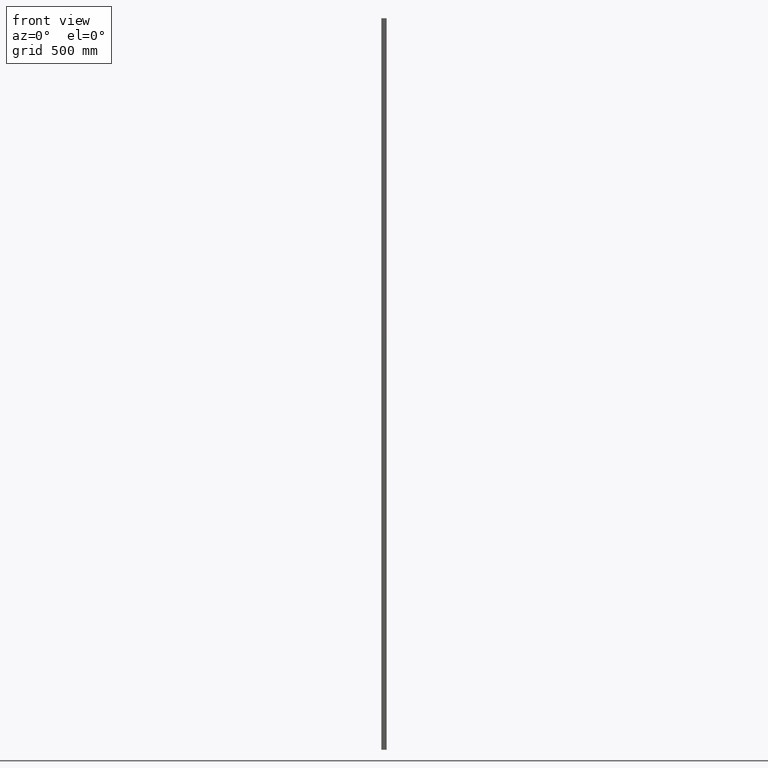
[diagram: clean part render]
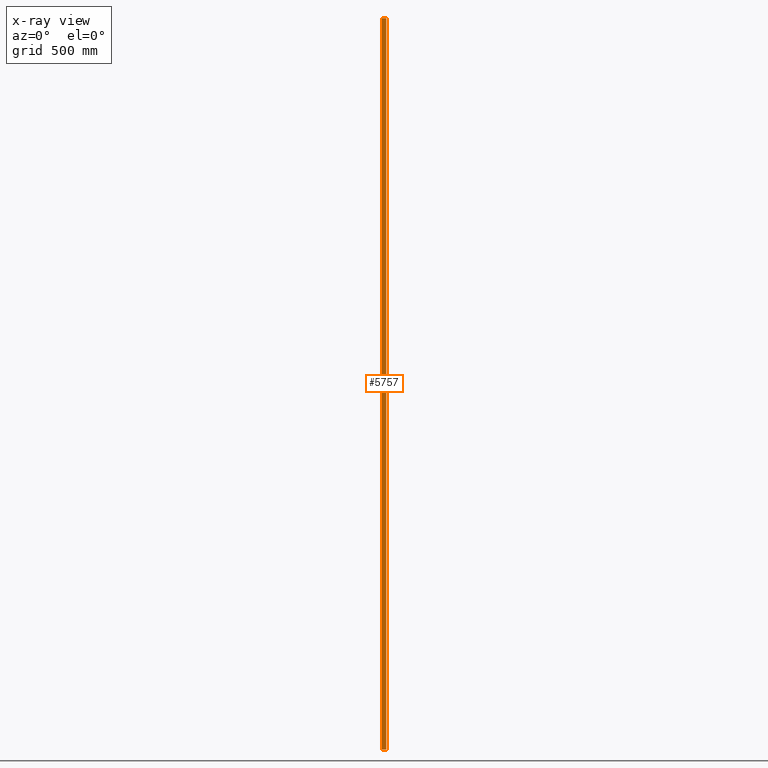
[diagram: x-ray — body ghosted, one internal face saturated and labeled with its STEP entity id]
A machine part, front view, then the same camera in x-ray: the body is ghosted and one INTERNAL B-rep face — a face not visible from any outside direction — is saturated and labeled: STEP entity #5757.
In plain terms, the highlighted planar face has unit normal (0, 1, 0).
Its self-contained STEP definition (entity closure, byte-faithful):
#3 = LINE ( 'NONE', #15157, #4398 ) ;
#6 = ORIENTED_EDGE ( 'NONE', *, *, #15926, .T. ) ;
#20 = ORIENTED_EDGE ( 'NONE', *, *, #7199, .T. ) ;
#31 = CARTESIAN_POINT ( 'NONE',  ( -9.000000000000001800, 10.00000000000000000, -1500.000000000000000 ) ) ;
#51 = CARTESIAN_POINT ( 'NONE',  ( -8.999999999999998200, 10.00000000280208000, 2.314505509497168000 ) ) ;
#69 = EDGE_CURVE ( 'NONE', #5281, #4509, #1039, .T. ) ;
#79 = VECTOR ( 'NONE', #15009, 1000.000000000000000 ) ;
#81 = VERTEX_POINT ( 'NONE', #1975 ) ;
#93 = VERTEX_POINT ( 'NONE', #734 ) ;
#103 = DIRECTION ( 'NONE',  ( -0.0000000000000000000, -0.0000000000000000000, -1.000000000000000000 ) ) ;
#125 = LINE ( 'NONE', #9187, #9929 ) ;
#156 = ORIENTED_EDGE ( 'NONE', *, *, #6298, .T. ) ;
#201 = LINE ( 'NONE', #5926, #7226 ) ;
#217 = VERTEX_POINT ( 'NONE', #6093 ) ;
#262 = CARTESIAN_POINT ( 'NONE',  ( -9.000000000000001800, 10.00000000000000000, 0.7927559264528927200 ) ) ;
#287 = DIRECTION ( 'NONE',  ( -0.0000000000000000000, -0.0000000000000000000, -1.000000000000000000 ) ) ;
#303 = LINE ( 'NONE', #15085, #13450 ) ;
#310 = VERTEX_POINT ( 'NONE', #9094 ) ;
#335 = VECTOR ( 'NONE', #13925, 1000.000000000000000 ) ;
#353 = CARTESIAN_POINT ( 'NONE',  ( -9.000000000000001800, 10.00000000000000000, 1500.000000000000000 ) ) ;
#369 = CARTESIAN_POINT ( 'NONE',  ( -9.000000000000001800, 10.00000000000000000, 5.670638757203638700 ) ) ;
#390 = ORIENTED_EDGE ( 'NONE', *, *, #5374, .T. ) ;
#397 = CARTESIAN_POINT ( 'NONE',  ( -9.000000000000001800, 10.00000000000000000, 1500.000000000000000 ) ) ;
#431 = CARTESIAN_POINT ( 'NONE',  ( -9.000000000000001800, 10.00000000000000000, 1500.000000000000000 ) ) ;
#446 = VERTEX_POINT ( 'NONE', #262 ) ;
#453 = DIRECTION ( 'NONE',  ( -0.0000000000000000000, -0.0000000000000000000, -1.000000000000000000 ) ) ;
#476 = VERTEX_POINT ( 'NONE', #2797 ) ;
#493 = LINE ( 'NONE', #1965, #4709 ) ;
#540 = CARTESIAN_POINT ( 'NONE',  ( -8.999999999999998200, 9.999999990799702600, 8.301990388454326500 ) ) ;
#548 = VERTEX_POINT ( 'NONE', #369 ) ;
#550 = VECTOR ( 'NONE', #572, 1000.000000000000000 ) ;
#565 = DIRECTION ( 'NONE',  ( -0.0000000000000000000, -0.0000000000000000000, -1.000000000000000000 ) ) ;
#572 = DIRECTION ( 'NONE',  ( -0.0000000000000000000, -0.0000000000000000000, -1.000000000000000000 ) ) ;
#578 = ORIENTED_EDGE ( 'NONE', *, *, #13438, .T. ) ;
#587 = DIRECTION ( 'NONE',  ( -0.0000000000000000000, -0.0000000000000000000, -1.000000000000000000 ) ) ;
#646 = CARTESIAN_POINT ( 'NONE',  ( -9.000000000000001800, 10.00000000000000000, 1500.000000000000000 ) ) ;
#734 = CARTESIAN_POINT ( 'NONE',  ( -9.000000000000000000, 9.999999999999998200, -9.444227430555953300 ) ) ;
#738 = DIRECTION ( 'NONE',  ( -0.0000000000000000000, -0.0000000000000000000, -1.000000000000000000 ) ) ;
#869 = EDGE_CURVE ( 'NONE', #5873, #548, #15750, .T. ) ;
#908 = DIRECTION ( 'NONE',  ( -0.0000000000000000000, -0.0000000000000000000, -1.000000000000000000 ) ) ;
#922 = EDGE_CURVE ( 'NONE', #14538, #4088, #3999, .T. ) ;
#939 = VECTOR ( 'NONE', #15642, 1000.000000000000000 ) ;
#966 = CARTESIAN_POINT ( 'NONE',  ( -9.000000000000001800, 10.00000000000000000, 1500.000000000000000 ) ) ;
#988 = EDGE_CURVE ( 'NONE', #10763, #12453, #2217, .T. ) ;
#990 = LINE ( 'NONE', #6692, #3975 ) ;
#1037 = ORIENTED_EDGE ( 'NONE', *, *, #15510, .T. ) ;
#1039 = LINE ( 'NONE', #5859, #7222 ) ;
#1062 = VECTOR ( 'NONE', #3358, 1000.000000000000000 ) ;
#1122 = EDGE_CURVE ( 'NONE', #15274, #5281, #3, .T. ) ;
#1132 = CARTESIAN_POINT ( 'NONE',  ( -9.000000000000001800, 10.00000000000000000, 3.302053977774166400 ) ) ;
#1259 = CARTESIAN_POINT ( 'NONE',  ( -9.000000000000000000, 10.00000000000000400, -10.60172148674728200 ) ) ;
#1265 = EDGE_CURVE ( 'NONE', #8491, #12414, #9585, .T. ) ;
#1316 = ORIENTED_EDGE ( 'NONE', *, *, #4902, .T. ) ;
#1373 = LINE ( 'NONE', #5643, #3961 ) ;
#1419 = VECTOR ( 'NONE', #5795, 1000.000000000000000 ) ;
#1455 = VERTEX_POINT ( 'NONE', #5262 ) ;
#1475 = ORIENTED_EDGE ( 'NONE', *, *, #8589, .T. ) ;
#1541 = VECTOR ( 'NONE', #565, 1000.000000000000000 ) ;
#1600 = LINE ( 'NONE', #13853, #8191 ) ;
#1605 = CARTESIAN_POINT ( 'NONE',  ( -9.000000000000001800, 9.999999990799700800, 5.333908123497178800 ) ) ;
#1648 = EDGE_CURVE ( 'NONE', #13646, #2062, #16146, .T. ) ;
#1684 = CARTESIAN_POINT ( 'NONE',  ( -9.000000000000001800, 10.00000000000000000, 1500.000000000000000 ) ) ;
#1698 = CARTESIAN_POINT ( 'NONE',  ( -9.000000000000001800, 10.00000000000000000, 1500.000000000000000 ) ) ;
#1744 = VECTOR ( 'NONE', #11290, 1000.000000000000000 ) ;
#1746 = LINE ( 'NONE', #16339, #335 ) ;
#1838 = LINE ( 'NONE', #3266, #5215 ) ;
#1865 = DIRECTION ( 'NONE',  ( -0.0000000000000000000, -0.0000000000000000000, -1.000000000000000000 ) ) ;
#1931 = CARTESIAN_POINT ( 'NONE',  ( -9.000000000000001800, 10.00000000316013300, 1.221058530776788500 ) ) ;
#1965 = CARTESIAN_POINT ( 'NONE',  ( -9.000000000000001800, 10.00000000000000000, 1500.000000000000000 ) ) ;
#1975 = CARTESIAN_POINT ( 'NONE',  ( -9.000000000000000000, 10.00000000000000900, 5.181919648641740000 ) ) ;
#1977 = CARTESIAN_POINT ( 'NONE',  ( -9.000000000000001800, 10.00000000000000000, 1500.000000000000000 ) ) ;
#1987 = VECTOR ( 'NONE', #11754, 1000.000000000000000 ) ;
#2018 = VECTOR ( 'NONE', #3283, 1000.000000000000000 ) ;
#2062 = VERTEX_POINT ( 'NONE', #2293 ) ;
#2090 = EDGE_CURVE ( 'NONE', #16110, #1455, #1600, .T. ) ;
#2217 = LINE ( 'NONE', #9491, #1419 ) ;
#2293 = CARTESIAN_POINT ( 'NONE',  ( -9.000000000000001800, 10.00000000000000000, -9.825095999954180900 ) ) ;
#2315 = VERTEX_POINT ( 'NONE', #14463 ) ;
#2459 = DIRECTION ( 'NONE',  ( -0.0000000000000000000, -0.0000000000000000000, -1.000000000000000000 ) ) ;
#2467 = EDGE_CURVE ( 'NONE', #13712, #16270, #15945, .T. ) ;
#2496 = CARTESIAN_POINT ( 'NONE',  ( -9.000000000000001800, 10.00000000000000000, 1500.000000000000000 ) ) ;
#2519 = EDGE_LOOP ( 'NONE', ( #13385, #10490, #15983, #13321, #4014, #13842, #7124, #5269, #8856, #3859, #8266, #390, #7877, #2966, #2648, #3858, #8866, #8728, #16488, #9068, #12822, #5300, #5245, #4251, #2546, #7531, #2921, #1316, #2693, #4069, #5284, #4335, #8101, #15065, #1475, #6780, #16390, #6465, #5324, #13908, #3067, #20, #9314, #578, #8623, #16317, #5604, #9458, #156, #6, #15158, #13052, #11385, #12774, #3805, #1037, #3962, #14364, #5752, #16555, #12629, #5441, #3714, #10083, #9575, #5632 ) ) ;
#2546 = ORIENTED_EDGE ( 'NONE', *, *, #16069, .T. ) ;
#2582 = CARTESIAN_POINT ( 'NONE',  ( -8.999999999999998200, 10.00000000000000900, 8.150001913598892100 ) ) ;
#2648 = ORIENTED_EDGE ( 'NONE', *, *, #5777, .T. ) ;
#2654 = CARTESIAN_POINT ( 'NONE',  ( -9.000000000000001800, 10.00000000000000000, 1500.000000000000000 ) ) ;
#2693 = ORIENTED_EDGE ( 'NONE', *, *, #1265, .T. ) ;
#2736 = DIRECTION ( 'NONE',  ( -0.0000000000000000000, -0.0000000000000000000, -1.000000000000000000 ) ) ;
#2797 = CARTESIAN_POINT ( 'NONE',  ( -9.000000000000001800, 10.00000000000000000, -5.165998931623949600 ) ) ;
#2848 = VECTOR ( 'NONE', #10509, 1000.000000000000000 ) ;
#2883 = LINE ( 'NONE', #2654, #3288 ) ;
#2885 = VERTEX_POINT ( 'NONE', #1605 ) ;
#2921 = ORIENTED_EDGE ( 'NONE', *, *, #988, .T. ) ;
#2966 = ORIENTED_EDGE ( 'NONE', *, *, #11450, .T. ) ;
#2972 = DIRECTION ( 'NONE',  ( -0.0000000000000000000, -0.0000000000000000000, -1.000000000000000000 ) ) ;
#3037 = DIRECTION ( 'NONE',  ( -0.0000000000000000000, -0.0000000000000000000, -1.000000000000000000 ) ) ;
#3064 = VECTOR ( 'NONE', #738, 1000.000000000000000 ) ;
#3067 = ORIENTED_EDGE ( 'NONE', *, *, #15730, .T. ) ;
#3070 = VERTEX_POINT ( 'NONE', #1931 ) ;
#3079 = LINE ( 'NONE', #16347, #16243 ) ;
#3188 = CARTESIAN_POINT ( 'NONE',  ( -9.000000000000001800, 10.00000000000000000, 1500.000000000000000 ) ) ;
#3200 = VECTOR ( 'NONE', #2459, 1000.000000000000000 ) ;
#3244 = DIRECTION ( 'NONE',  ( -0.0000000000000000000, -0.0000000000000000000, -1.000000000000000000 ) ) ;
#3251 = EDGE_CURVE ( 'NONE', #1455, #5025, #8914, .T. ) ;
#3266 = CARTESIAN_POINT ( 'NONE',  ( -9.000000000000001800, 10.00000000000000000, 1500.000000000000000 ) ) ;
#3283 = DIRECTION ( 'NONE',  ( -0.0000000000000000000, -0.0000000000000000000, -1.000000000000000000 ) ) ;
#3288 = VECTOR ( 'NONE', #11544, 1000.000000000000000 ) ;
#3322 = DIRECTION ( 'NONE',  ( -0.0000000000000000000, -0.0000000000000000000, -1.000000000000000000 ) ) ;
#3358 = DIRECTION ( 'NONE',  ( -0.0000000000000000000, -0.0000000000000000000, -1.000000000000000000 ) ) ;
#3406 = LINE ( 'NONE', #7195, #12352 ) ;
#3465 = CARTESIAN_POINT ( 'NONE',  ( -9.000000000000001800, 10.00000000000000000, 6.229181438967446000 ) ) ;
#3469 = CARTESIAN_POINT ( 'NONE',  ( -9.000000000000001800, 10.00000000000000000, 1500.000000000000000 ) ) ;
#3600 = CARTESIAN_POINT ( 'NONE',  ( -9.000000000000001800, 10.00000000000000000, 1500.000000000000000 ) ) ;
#3605 = EDGE_CURVE ( 'NONE', #10951, #13646, #9504, .T. ) ;
#3671 = FACE_OUTER_BOUND ( 'NONE', #2519, .T. ) ;
#3678 = CARTESIAN_POINT ( 'NONE',  ( -9.000000000000001800, 10.00000000000000000, 1500.000000000000000 ) ) ;
#3714 = ORIENTED_EDGE ( 'NONE', *, *, #11199, .T. ) ;
#3805 = ORIENTED_EDGE ( 'NONE', *, *, #9115, .T. ) ;
#3806 = LINE ( 'NONE', #31, #15347 ) ;
#3831 = VERTEX_POINT ( 'NONE', #11012 ) ;
#3858 = ORIENTED_EDGE ( 'NONE', *, *, #4109, .T. ) ;
#3859 = ORIENTED_EDGE ( 'NONE', *, *, #16383, .T. ) ;
#3901 = EDGE_CURVE ( 'NONE', #12512, #16110, #303, .T. ) ;
#3932 = LINE ( 'NONE', #4380, #16292 ) ;
#3961 = VECTOR ( 'NONE', #3037, 1000.000000000000000 ) ;
#3962 = ORIENTED_EDGE ( 'NONE', *, *, #15145, .T. ) ;
#3975 = VECTOR ( 'NONE', #103, 1000.000000000000000 ) ;
#3979 = CARTESIAN_POINT ( 'NONE',  ( -9.000000000000001800, 10.00000000000000000, 1500.000000000000000 ) ) ;
#3999 = LINE ( 'NONE', #3188, #4808 ) ;
#4000 = DIRECTION ( 'NONE',  ( -0.0000000000000000000, -0.0000000000000000000, -1.000000000000000000 ) ) ;
#4007 = CARTESIAN_POINT ( 'NONE',  ( -9.000000000000000000, 9.999999999999998200, -4.742416452892188200 ) ) ;
#4014 = ORIENTED_EDGE ( 'NONE', *, *, #69, .T. ) ;
#4069 = ORIENTED_EDGE ( 'NONE', *, *, #11970, .T. ) ;
#4074 = CARTESIAN_POINT ( 'NONE',  ( -9.000000000000001800, 10.00000000000000000, 1500.000000000000000 ) ) ;
#4078 = LINE ( 'NONE', #16312, #11661 ) ;
#4088 = VERTEX_POINT ( 'NONE', #4352 ) ;
#4109 = EDGE_CURVE ( 'NONE', #16197, #13712, #493, .T. ) ;
#4138 = VECTOR ( 'NONE', #2972, 1000.000000000000000 ) ;
#4251 = ORIENTED_EDGE ( 'NONE', *, *, #11717, .T. ) ;
#4266 = CARTESIAN_POINT ( 'NONE',  ( -9.000000000000001800, 10.00000000000000000, 1500.000000000000000 ) ) ;
#4289 = CARTESIAN_POINT ( 'NONE',  ( -9.000000000000001800, 10.00000000000985900, 0.3203758507136087500 ) ) ;
#4291 = DIRECTION ( 'NONE',  ( -0.0000000000000000000, -0.0000000000000000000, -1.000000000000000000 ) ) ;
#4335 = ORIENTED_EDGE ( 'NONE', *, *, #15185, .T. ) ;
#4352 = CARTESIAN_POINT ( 'NONE',  ( -9.000000000000000000, 9.999999999999426200, -0.3368490022013954600 ) ) ;
#4380 = CARTESIAN_POINT ( 'NONE',  ( -9.000000000000001800, 10.00000000000000000, 1500.000000000000000 ) ) ;
#4398 = VECTOR ( 'NONE', #12584, 1000.000000000000000 ) ;
#4468 = CARTESIAN_POINT ( 'NONE',  ( -9.000000000000000000, 10.00000000000000000, -2.985042735042640100 ) ) ;
#4509 = VERTEX_POINT ( 'NONE', #9142 ) ;
#4613 = CARTESIAN_POINT ( 'NONE',  ( -9.000000000000001800, 10.00000000000000000, 1500.000000000000000 ) ) ;
#4626 = DIRECTION ( 'NONE',  ( -0.0000000000000000000, -0.0000000000000000000, -1.000000000000000000 ) ) ;
#4644 = DIRECTION ( 'NONE',  ( -0.0000000000000000000, -0.0000000000000000000, -1.000000000000000000 ) ) ;
#4690 = DIRECTION ( 'NONE',  ( -0.0000000000000000000, -0.0000000000000000000, -1.000000000000000000 ) ) ;
#4698 = CARTESIAN_POINT ( 'NONE',  ( -9.000000000000001800, 10.00000000000000000, -10.72117053953025600 ) ) ;
#4709 = VECTOR ( 'NONE', #5849, 1000.000000000000000 ) ;
#4714 = CARTESIAN_POINT ( 'NONE',  ( -9.000000000000001800, 10.00000000000000000, 1500.000000000000000 ) ) ;
#4729 = VECTOR ( 'NONE', #13940, 1000.000000000000000 ) ;
#4808 = VECTOR ( 'NONE', #3244, 1000.000000000000000 ) ;
#4821 = DIRECTION ( 'NONE',  ( -0.0000000000000000000, -0.0000000000000000000, -1.000000000000000000 ) ) ;
#4867 = EDGE_CURVE ( 'NONE', #8256, #6074, #11067, .T. ) ;
#4902 = EDGE_CURVE ( 'NONE', #12453, #8491, #12244, .T. ) ;
#4931 = CARTESIAN_POINT ( 'NONE',  ( -9.000000000000000000, 10.00000000000000200, -10.34027725611036200 ) ) ;
#4941 = VECTOR ( 'NONE', #15370, 1000.000000000000000 ) ;
#5002 = VECTOR ( 'NONE', #9279, 1000.000000000000000 ) ;
#5010 = LINE ( 'NONE', #646, #2018 ) ;
#5013 = CARTESIAN_POINT ( 'NONE',  ( -9.000000000000001800, 10.00000000000000000, -1500.000000000000000 ) ) ;
#5025 = VERTEX_POINT ( 'NONE', #15411 ) ;
#5054 = VERTEX_POINT ( 'NONE', #4007 ) ;
#5081 = CARTESIAN_POINT ( 'NONE',  ( 8.999999999999998200, 10.00000000000000000, -1500.000000000000000 ) ) ;
#5116 = CARTESIAN_POINT ( 'NONE',  ( -9.000000000000001800, 10.00000000000000000, 1500.000000000000000 ) ) ;
#5126 = LINE ( 'NONE', #3600, #1744 ) ;
#5215 = VECTOR ( 'NONE', #15894, 1000.000000000000000 ) ;
#5235 = VECTOR ( 'NONE', #13596, 1000.000000000000000 ) ;
#5245 = ORIENTED_EDGE ( 'NONE', *, *, #13576, .T. ) ;
#5262 = CARTESIAN_POINT ( 'NONE',  ( -9.000000000000001800, 10.00000000000000000, -6.716346153846419800 ) ) ;
#5269 = ORIENTED_EDGE ( 'NONE', *, *, #7450, .T. ) ;
#5271 = LINE ( 'NONE', #8571, #13229 ) ;
#5281 = VERTEX_POINT ( 'NONE', #7359 ) ;
#5284 = ORIENTED_EDGE ( 'NONE', *, *, #6542, .T. ) ;
#5300 = ORIENTED_EDGE ( 'NONE', *, *, #5367, .T. ) ;
#5324 = ORIENTED_EDGE ( 'NONE', *, *, #14113, .T. ) ;
#5330 = EDGE_CURVE ( 'NONE', #16270, #16424, #10273, .T. ) ;
#5367 = EDGE_CURVE ( 'NONE', #548, #2885, #5271, .T. ) ;
#5374 = EDGE_CURVE ( 'NONE', #6459, #15605, #3079, .T. ) ;
#5441 = ORIENTED_EDGE ( 'NONE', *, *, #15805, .T. ) ;
#5449 = VERTEX_POINT ( 'NONE', #7730 ) ;
#5489 = EDGE_CURVE ( 'NONE', #6421, #217, #2883, .T. ) ;
#5496 = VECTOR ( 'NONE', #15244, 1000.000000000000000 ) ;
#5529 = CARTESIAN_POINT ( 'NONE',  ( -8.999999999999998200, 9.999999999999921800, 4.619052529214074300 ) ) ;
#5604 = ORIENTED_EDGE ( 'NONE', *, *, #6881, .T. ) ;
#5631 = CARTESIAN_POINT ( 'NONE',  ( -9.000000000000001800, 10.00000000000000000, 1500.000000000000000 ) ) ;
#5632 = ORIENTED_EDGE ( 'NONE', *, *, #6901, .T. ) ;
#5643 = CARTESIAN_POINT ( 'NONE',  ( -9.000000000000001800, 10.00000000000000000, 1500.000000000000000 ) ) ;
#5740 = VECTOR ( 'NONE', #16318, 1000.000000000000000 ) ;
#5752 = ORIENTED_EDGE ( 'NONE', *, *, #6052, .T. ) ;
#5757 = ADVANCED_FACE ( 'NONE', ( #3671 ), #9661, .F. ) ;
#5775 = CARTESIAN_POINT ( 'NONE',  ( -9.000000000000001800, 10.00000000000000000, -1.334384499162455400 ) ) ;
#5777 = EDGE_CURVE ( 'NONE', #8508, #16197, #11630, .T. ) ;
#5795 = DIRECTION ( 'NONE',  ( -0.0000000000000000000, -0.0000000000000000000, -1.000000000000000000 ) ) ;
#5834 = VERTEX_POINT ( 'NONE', #4698 ) ;
#5840 = EDGE_CURVE ( 'NONE', #4509, #12102, #11245, .T. ) ;
#5844 = CARTESIAN_POINT ( 'NONE',  ( -9.000000000000001800, 10.00000000000000000, 1500.000000000000000 ) ) ;
#5849 = DIRECTION ( 'NONE',  ( -0.0000000000000000000, -0.0000000000000000000, -1.000000000000000000 ) ) ;
#5859 = CARTESIAN_POINT ( 'NONE',  ( -9.000000000000001800, 10.00000000000000000, 1500.000000000000000 ) ) ;
#5862 = DIRECTION ( 'NONE',  ( 0.0000000000000000000, 1.000000000000000000, 0.0000000000000000000 ) ) ;
#5873 = VERTEX_POINT ( 'NONE', #12253 ) ;
#5877 = CARTESIAN_POINT ( 'NONE',  ( -9.000000000000001800, 10.00000000000000000, -0.4558544846511303200 ) ) ;
#5919 = CARTESIAN_POINT ( 'NONE',  ( -9.000000000000001800, 10.00000000000000000, 1500.000000000000000 ) ) ;
#5926 = CARTESIAN_POINT ( 'NONE',  ( -9.000000000000001800, 10.00000000000000000, 1500.000000000000000 ) ) ;
#5982 = CARTESIAN_POINT ( 'NONE',  ( -9.000000000000000000, 10.00000000000000000, -1.967414529914399500 ) ) ;
#6052 = EDGE_CURVE ( 'NONE', #93, #10951, #11118, .T. ) ;
#6066 = CARTESIAN_POINT ( 'NONE',  ( -9.000000000000001800, 10.00000000000000000, 9.717604625021580800 ) ) ;
#6074 = VERTEX_POINT ( 'NONE', #5081 ) ;
#6093 = CARTESIAN_POINT ( 'NONE',  ( -9.000000000000133200, 10.00000000000000000, -0.7474626068373705400 ) ) ;
#6121 = CARTESIAN_POINT ( 'NONE',  ( -9.000000000000001800, 10.00000000000000000, 1500.000000000000000 ) ) ;
#6243 = EDGE_CURVE ( 'NONE', #14492, #3831, #3932, .T. ) ;
#6298 = EDGE_CURVE ( 'NONE', #8658, #476, #10710, .T. ) ;
#6303 = CARTESIAN_POINT ( 'NONE',  ( -9.000000000000001800, 10.00000000000000000, 1500.000000000000000 ) ) ;
#6358 = CARTESIAN_POINT ( 'NONE',  ( -9.000000000000001800, 10.00000000000000000, 1500.000000000000000 ) ) ;
#6421 = VERTEX_POINT ( 'NONE', #5877 ) ;
#6440 = CARTESIAN_POINT ( 'NONE',  ( -9.000000000000001800, 10.00000000000000000, -9.564112329727869600 ) ) ;
#6459 = VERTEX_POINT ( 'NONE', #16132 ) ;
#6465 = ORIENTED_EDGE ( 'NONE', *, *, #922, .T. ) ;
#6542 = EDGE_CURVE ( 'NONE', #9176, #2315, #5126, .T. ) ;
#6562 = VECTOR ( 'NONE', #12909, 1000.000000000000000 ) ;
#6588 = CARTESIAN_POINT ( 'NONE',  ( -9.000000000000000000, 9.999999990482576700, 9.864725582880886600 ) ) ;
#6624 = VERTEX_POINT ( 'NONE', #1259 ) ;
#6692 = CARTESIAN_POINT ( 'NONE',  ( -9.000000000000001800, 10.00000000000000000, 1500.000000000000000 ) ) ;
#6780 = ORIENTED_EDGE ( 'NONE', *, *, #11902, .T. ) ;
#6854 = VECTOR ( 'NONE', #13866, 1000.000000000000000 ) ;
#6881 = EDGE_CURVE ( 'NONE', #13722, #5054, #125, .T. ) ;
#6901 = EDGE_CURVE ( 'NONE', #5834, #9970, #10916, .T. ) ;
#6912 = VECTOR ( 'NONE', #15259, 1000.000000000000000 ) ;
#7124 = ORIENTED_EDGE ( 'NONE', *, *, #9529, .T. ) ;
#7175 = LINE ( 'NONE', #7980, #1987 ) ;
#7195 = CARTESIAN_POINT ( 'NONE',  ( -9.000000000000001800, 10.00000000000000000, 1500.000000000000000 ) ) ;
#7199 = EDGE_CURVE ( 'NONE', #9655, #8381, #10898, .T. ) ;
#7222 = VECTOR ( 'NONE', #16052, 1000.000000000000000 ) ;
#7226 = VECTOR ( 'NONE', #3322, 1000.000000000000000 ) ;
#7274 = DIRECTION ( 'NONE',  ( 0.0000000000000000000, -0.0000000000000000000, 1.000000000000000000 ) ) ;
#7331 = CARTESIAN_POINT ( 'NONE',  ( -9.000000000000001800, 10.00000000000000000, 1500.000000000000000 ) ) ;
#7359 = CARTESIAN_POINT ( 'NONE',  ( -9.000000000000000000, 10.00000000000000000, 10.75293803418808400 ) ) ;
#7450 = EDGE_CURVE ( 'NONE', #12050, #7575, #8924, .T. ) ;
#7509 = VERTEX_POINT ( 'NONE', #11003 ) ;
#7531 = ORIENTED_EDGE ( 'NONE', *, *, #8747, .T. ) ;
#7575 = VERTEX_POINT ( 'NONE', #13360 ) ;
#7617 = LINE ( 'NONE', #12223, #16556 ) ;
#7625 = DIRECTION ( 'NONE',  ( -0.0000000000000000000, -0.0000000000000000000, -1.000000000000000000 ) ) ;
#7683 = CARTESIAN_POINT ( 'NONE',  ( -9.000000000000001800, 10.00000000000000000, 1500.000000000000000 ) ) ;
#7730 = CARTESIAN_POINT ( 'NONE',  ( -9.000000000000000000, 9.999999999999987600, -10.47356264641160500 ) ) ;
#7740 = VECTOR ( 'NONE', #2736, 1000.000000000000000 ) ;
#7758 = CARTESIAN_POINT ( 'NONE',  ( -9.000000000000001800, 10.00000000000000000, 1500.000000000000000 ) ) ;
#7844 = CARTESIAN_POINT ( 'NONE',  ( -9.000000000000001800, 10.00000000000000000, 1500.000000000000000 ) ) ;
#7871 = EDGE_CURVE ( 'NONE', #8381, #15623, #14459, .T. ) ;
#7877 = ORIENTED_EDGE ( 'NONE', *, *, #11924, .T. ) ;
#7885 = CARTESIAN_POINT ( 'NONE',  ( -9.000000000000001800, 10.00000000000000000, 1500.000000000000000 ) ) ;
#7980 = CARTESIAN_POINT ( 'NONE',  ( -9.000000000000001800, 10.00000000000000000, 1500.000000000000000 ) ) ;
#8011 = CARTESIAN_POINT ( 'NONE',  ( -9.000000000000000000, 10.00000000000000900, -4.612847222222706400 ) ) ;
#8042 = DIRECTION ( 'NONE',  ( -0.0000000000000000000, -0.0000000000000000000, -1.000000000000000000 ) ) ;
#8063 = CARTESIAN_POINT ( 'NONE',  ( -9.000000000000001800, 10.00000000000000000, 1500.000000000000000 ) ) ;
#8101 = ORIENTED_EDGE ( 'NONE', *, *, #6243, .T. ) ;
#8134 = LINE ( 'NONE', #1684, #939 ) ;
#8174 = CARTESIAN_POINT ( 'NONE',  ( 8.999999999999998200, 10.00000000000000000, 1500.000000000000000 ) ) ;
#8191 = VECTOR ( 'NONE', #9933, 1000.000000000000000 ) ;
#8248 = CARTESIAN_POINT ( 'NONE',  ( -9.000000000000001800, 10.00000000000000000, -3.301537906800877700 ) ) ;
#8256 = VERTEX_POINT ( 'NONE', #9610 ) ;
#8266 = ORIENTED_EDGE ( 'NONE', *, *, #8845, .T. ) ;
#8282 = VERTEX_POINT ( 'NONE', #5529 ) ;
#8381 = VERTEX_POINT ( 'NONE', #5982 ) ;
#8429 = CARTESIAN_POINT ( 'NONE',  ( -9.000000000000001800, 10.00000000000000000, 1500.000000000000000 ) ) ;
#8465 = VERTEX_POINT ( 'NONE', #15483 ) ;
#8487 = CARTESIAN_POINT ( 'NONE',  ( -8.999999999999998200, 10.00000000972986500, 0.4393177880119049100 ) ) ;
#8491 = VERTEX_POINT ( 'NONE', #15427 ) ;
#8508 = VERTEX_POINT ( 'NONE', #12753 ) ;
#8571 = CARTESIAN_POINT ( 'NONE',  ( -9.000000000000001800, 10.00000000000000000, 1500.000000000000000 ) ) ;
#8589 = EDGE_CURVE ( 'NONE', #3070, #446, #9854, .T. ) ;
#8612 = VECTOR ( 'NONE', #8042, 1000.000000000000000 ) ;
#8623 = ORIENTED_EDGE ( 'NONE', *, *, #13349, .T. ) ;
#8658 = VERTEX_POINT ( 'NONE', #10752 ) ;
#8695 = VERTEX_POINT ( 'NONE', #13292 ) ;
#8714 = VECTOR ( 'NONE', #15905, 1000.000000000000000 ) ;
#8728 = ORIENTED_EDGE ( 'NONE', *, *, #5330, .T. ) ;
#8747 = EDGE_CURVE ( 'NONE', #7509, #10763, #14586, .T. ) ;
#8764 = DIRECTION ( 'NONE',  ( 1.000000000000000000, 0.0000000000000000000, 0.0000000000000000000 ) ) ;
#8845 = EDGE_CURVE ( 'NONE', #10910, #6459, #14776, .T. ) ;
#8856 = ORIENTED_EDGE ( 'NONE', *, *, #15886, .T. ) ;
#8866 = ORIENTED_EDGE ( 'NONE', *, *, #2467, .T. ) ;
#8902 = VECTOR ( 'NONE', #4690, 1000.000000000000000 ) ;
#8914 = LINE ( 'NONE', #14998, #9293 ) ;
#8922 = DIRECTION ( 'NONE',  ( -0.0000000000000000000, -0.0000000000000000000, -1.000000000000000000 ) ) ;
#8924 = LINE ( 'NONE', #397, #1541 ) ;
#8956 = VECTOR ( 'NONE', #11551, 1000.000000000000000 ) ;
#9025 = EDGE_CURVE ( 'NONE', #6624, #5834, #1838, .T. ) ;
#9045 = VECTOR ( 'NONE', #4291, 1000.000000000000000 ) ;
#9068 = ORIENTED_EDGE ( 'NONE', *, *, #13837, .T. ) ;
#9094 = CARTESIAN_POINT ( 'NONE',  ( -9.000000000000000000, 10.00000000000000000, -5.749599358974347900 ) ) ;
#9115 = EDGE_CURVE ( 'NONE', #5025, #15015, #9662, .T. ) ;
#9142 = CARTESIAN_POINT ( 'NONE',  ( -9.000000000000001800, 10.00000000000000000, 10.10844017094014700 ) ) ;
#9146 = LINE ( 'NONE', #3678, #5740 ) ;
#9176 = VERTEX_POINT ( 'NONE', #12975 ) ;
#9187 = CARTESIAN_POINT ( 'NONE',  ( -9.000000000000001800, 10.00000000000000000, 1500.000000000000000 ) ) ;
#9279 = DIRECTION ( 'NONE',  ( -0.0000000000000000000, -0.0000000000000000000, -1.000000000000000000 ) ) ;
#9293 = VECTOR ( 'NONE', #7625, 1000.000000000000000 ) ;
#9314 = ORIENTED_EDGE ( 'NONE', *, *, #7871, .T. ) ;
#9349 = VERTEX_POINT ( 'NONE', #4468 ) ;
#9408 = AXIS2_PLACEMENT_3D ( 'NONE', #10940, #5862, #7274 ) ;
#9455 = VECTOR ( 'NONE', #908, 1000.000000000000000 ) ;
#9458 = ORIENTED_EDGE ( 'NONE', *, *, #11950, .T. ) ;
#9460 = DIRECTION ( 'NONE',  ( -0.0000000000000000000, -0.0000000000000000000, -1.000000000000000000 ) ) ;
#9491 = CARTESIAN_POINT ( 'NONE',  ( -9.000000000000001800, 10.00000000000000000, 1500.000000000000000 ) ) ;
#9500 = CARTESIAN_POINT ( 'NONE',  ( -9.000000000000001800, 10.00000000000000000, 1500.000000000000000 ) ) ;
#9504 = LINE ( 'NONE', #6358, #6912 ) ;
#9529 = EDGE_CURVE ( 'NONE', #12102, #12050, #11116, .T. ) ;
#9546 = LINE ( 'NONE', #4266, #550 ) ;
#9575 = ORIENTED_EDGE ( 'NONE', *, *, #9025, .T. ) ;
#9579 = DIRECTION ( 'NONE',  ( -0.0000000000000000000, -0.0000000000000000000, -1.000000000000000000 ) ) ;
#9585 = LINE ( 'NONE', #14006, #3200 ) ;
#9610 = CARTESIAN_POINT ( 'NONE',  ( 8.999999999999998200, 10.00000000000000000, 1500.000000000000000 ) ) ;
#9655 = VERTEX_POINT ( 'NONE', #5775 ) ;
#9661 = PLANE ( 'NONE',  #9408 ) ;
#9662 = LINE ( 'NONE', #4714, #5235 ) ;
#9754 = CARTESIAN_POINT ( 'NONE',  ( -9.000000000000000000, 10.00000000000000000, 4.121394230769212200 ) ) ;
#9811 = CARTESIAN_POINT ( 'NONE',  ( -9.000000000000001800, 10.00000000000000000, 1500.000000000000000 ) ) ;
#9854 = LINE ( 'NONE', #431, #9045 ) ;
#9873 = CARTESIAN_POINT ( 'NONE',  ( -9.000000000000001800, 10.00000000000000000, 1500.000000000000000 ) ) ;
#9929 = VECTOR ( 'NONE', #4000, 1000.000000000000000 ) ;
#9933 = DIRECTION ( 'NONE',  ( -0.0000000000000000000, -0.0000000000000000000, -1.000000000000000000 ) ) ;
#9970 = VERTEX_POINT ( 'NONE', #5013 ) ;
#9983 = EDGE_CURVE ( 'NONE', #10479, #93, #4078, .T. ) ;
#10083 = ORIENTED_EDGE ( 'NONE', *, *, #13806, .T. ) ;
#10138 = LINE ( 'NONE', #9500, #11702 ) ;
#10142 = VECTOR ( 'NONE', #11751, 1000.000000000000000 ) ;
#10238 = CARTESIAN_POINT ( 'NONE',  ( -9.000000000000000000, 10.00000000000000000, -7.445646367521728600 ) ) ;
#10273 = LINE ( 'NONE', #6121, #79 ) ;
#10291 = EDGE_CURVE ( 'NONE', #15659, #13722, #14007, .T. ) ;
#10479 = VERTEX_POINT ( 'NONE', #13284 ) ;
#10490 = ORIENTED_EDGE ( 'NONE', *, *, #4867, .F. ) ;
#10509 = DIRECTION ( 'NONE',  ( -0.0000000000000000000, -0.0000000000000000000, -1.000000000000000000 ) ) ;
#10520 = DIRECTION ( 'NONE',  ( -0.0000000000000000000, -0.0000000000000000000, -1.000000000000000000 ) ) ;
#10548 = LINE ( 'NONE', #4074, #6562 ) ;
#10710 = LINE ( 'NONE', #8063, #15282 ) ;
#10752 = CARTESIAN_POINT ( 'NONE',  ( -9.000000000000000000, 10.00000000000002500, -5.037159559078761900 ) ) ;
#10763 = VERTEX_POINT ( 'NONE', #9754 ) ;
#10898 = LINE ( 'NONE', #16472, #5496 ) ;
#10910 = VERTEX_POINT ( 'NONE', #13996 ) ;
#10916 = LINE ( 'NONE', #7758, #7740 ) ;
#10940 = CARTESIAN_POINT ( 'NONE',  ( -9.000000000000001800, 10.00000000000000000, 1500.000000000000000 ) ) ;
#10941 = CARTESIAN_POINT ( 'NONE',  ( -9.000000000000001800, 10.00000000000000000, 1500.000000000000000 ) ) ;
#10951 = VERTEX_POINT ( 'NONE', #6440 ) ;
#10980 = VECTOR ( 'NONE', #16022, 1000.000000000000000 ) ;
#11003 = CARTESIAN_POINT ( 'NONE',  ( -9.000000000000001800, 10.00000000000000000, 4.392761752137097600 ) ) ;
#11012 = CARTESIAN_POINT ( 'NONE',  ( -9.000000000000001800, 10.00000000000000000, 2.182662952133540600 ) ) ;
#11067 = LINE ( 'NONE', #8174, #16048 ) ;
#11116 = LINE ( 'NONE', #966, #4941 ) ;
#11118 = LINE ( 'NONE', #11425, #14081 ) ;
#11199 = EDGE_CURVE ( 'NONE', #15373, #5449, #201, .T. ) ;
#11204 = CARTESIAN_POINT ( 'NONE',  ( -9.000000000000001800, 10.00000000000000000, 1500.000000000000000 ) ) ;
#11245 = LINE ( 'NONE', #5919, #9455 ) ;
#11284 = DIRECTION ( 'NONE',  ( -0.0000000000000000000, -0.0000000000000000000, -1.000000000000000000 ) ) ;
#11290 = DIRECTION ( 'NONE',  ( -0.0000000000000000000, -0.0000000000000000000, -1.000000000000000000 ) ) ;
#11325 = CARTESIAN_POINT ( 'NONE',  ( -9.000000000000001800, 10.00000000000000000, 6.889913462366781300 ) ) ;
#11377 = VECTOR ( 'NONE', #15092, 1000.000000000000000 ) ;
#11385 = ORIENTED_EDGE ( 'NONE', *, *, #2090, .T. ) ;
#11425 = CARTESIAN_POINT ( 'NONE',  ( -9.000000000000001800, 10.00000000000000000, 1500.000000000000000 ) ) ;
#11450 = EDGE_CURVE ( 'NONE', #11732, #8508, #11961, .T. ) ;
#11489 = DIRECTION ( 'NONE',  ( -0.0000000000000000000, -0.0000000000000000000, -1.000000000000000000 ) ) ;
#11544 = DIRECTION ( 'NONE',  ( -0.0000000000000000000, -0.0000000000000000000, -1.000000000000000000 ) ) ;
#11551 = DIRECTION ( 'NONE',  ( -0.0000000000000000000, -0.0000000000000000000, -1.000000000000000000 ) ) ;
#11630 = LINE ( 'NONE', #1977, #3064 ) ;
#11650 = VERTEX_POINT ( 'NONE', #3465 ) ;
#11661 = VECTOR ( 'NONE', #8922, 1000.000000000000000 ) ;
#11702 = VECTOR ( 'NONE', #1865, 1000.000000000000000 ) ;
#11717 = EDGE_CURVE ( 'NONE', #81, #8282, #12746, .T. ) ;
#11732 = VERTEX_POINT ( 'NONE', #2582 ) ;
#11751 = DIRECTION ( 'NONE',  ( -0.0000000000000000000, -0.0000000000000000000, -1.000000000000000000 ) ) ;
#11754 = DIRECTION ( 'NONE',  ( -0.0000000000000000000, -0.0000000000000000000, -1.000000000000000000 ) ) ;
#11809 = EDGE_CURVE ( 'NONE', #9970, #6074, #3806, .T. ) ;
#11902 = EDGE_CURVE ( 'NONE', #446, #15710, #14341, .T. ) ;
#11915 = LINE ( 'NONE', #13316, #15712 ) ;
#11924 = EDGE_CURVE ( 'NONE', #15605, #11732, #7617, .T. ) ;
#11935 = DIRECTION ( 'NONE',  ( -0.0000000000000000000, -0.0000000000000000000, -1.000000000000000000 ) ) ;
#11950 = EDGE_CURVE ( 'NONE', #5054, #8658, #5010, .T. ) ;
#11961 = LINE ( 'NONE', #7885, #12951 ) ;
#11970 = EDGE_CURVE ( 'NONE', #12414, #9176, #3406, .T. ) ;
#12050 = VERTEX_POINT ( 'NONE', #6066 ) ;
#12097 = LINE ( 'NONE', #15583, #10142 ) ;
#12102 = VERTEX_POINT ( 'NONE', #6588 ) ;
#12223 = CARTESIAN_POINT ( 'NONE',  ( -9.000000000000001800, 10.00000000000000000, 1500.000000000000000 ) ) ;
#12244 = LINE ( 'NONE', #3469, #8902 ) ;
#12253 = CARTESIAN_POINT ( 'NONE',  ( -8.999999999999998200, 9.999999990752485200, 5.794928755456091100 ) ) ;
#12306 = VECTOR ( 'NONE', #4626, 1000.000000000000000 ) ;
#12352 = VECTOR ( 'NONE', #9579, 1000.000000000000000 ) ;
#12414 = VERTEX_POINT ( 'NONE', #1132 ) ;
#12453 = VERTEX_POINT ( 'NONE', #12583 ) ;
#12512 = VERTEX_POINT ( 'NONE', #16546 ) ;
#12583 = CARTESIAN_POINT ( 'NONE',  ( -9.000000000000001800, 10.00000000000000000, 3.907566303929188600 ) ) ;
#12584 = DIRECTION ( 'NONE',  ( -0.0000000000000000000, -0.0000000000000000000, -1.000000000000000000 ) ) ;
#12629 = ORIENTED_EDGE ( 'NONE', *, *, #1648, .T. ) ;
#12642 = CARTESIAN_POINT ( 'NONE',  ( -9.000000000000001800, 10.00000000000000000, 7.360844017094248000 ) ) ;
#12685 = LINE ( 'NONE', #5631, #4138 ) ;
#12691 = VECTOR ( 'NONE', #4644, 1000.000000000000000 ) ;
#12733 = VECTOR ( 'NONE', #8764, 1000.000000000000000 ) ;
#12746 = LINE ( 'NONE', #6303, #11377 ) ;
#12753 = CARTESIAN_POINT ( 'NONE',  ( -9.000000000000000000, 9.999999999999921800, 7.587134794171223700 ) ) ;
#12774 = ORIENTED_EDGE ( 'NONE', *, *, #3251, .T. ) ;
#12822 = ORIENTED_EDGE ( 'NONE', *, *, #869, .T. ) ;
#12875 = EDGE_CURVE ( 'NONE', #15274, #8256, #16134, .T. ) ;
#12909 = DIRECTION ( 'NONE',  ( -0.0000000000000000000, -0.0000000000000000000, -1.000000000000000000 ) ) ;
#12951 = VECTOR ( 'NONE', #11489, 1000.000000000000000 ) ;
#12975 = CARTESIAN_POINT ( 'NONE',  ( -9.000000000000000000, 10.00000000000000000, 3.002003205128642300 ) ) ;
#12992 = CARTESIAN_POINT ( 'NONE',  ( -9.000000000000000000, 10.00000000000000000, 7.089476495726973600 ) ) ;
#13049 = DIRECTION ( 'NONE',  ( -0.0000000000000000000, -0.0000000000000000000, -1.000000000000000000 ) ) ;
#13052 = ORIENTED_EDGE ( 'NONE', *, *, #3901, .T. ) ;
#13067 = CARTESIAN_POINT ( 'NONE',  ( -9.000000000000001800, 10.00000000084140900, 6.459503861467008600 ) ) ;
#13229 = VECTOR ( 'NONE', #11284, 1000.000000000000000 ) ;
#13283 = LINE ( 'NONE', #7844, #13672 ) ;
#13284 = CARTESIAN_POINT ( 'NONE',  ( -9.000000000000001800, 10.00000000000000000, -8.872524828335448500 ) ) ;
#13292 = CARTESIAN_POINT ( 'NONE',  ( -9.000000000000000000, 9.999999992416311700, -8.490377042834692700 ) ) ;
#13316 = CARTESIAN_POINT ( 'NONE',  ( -9.000000000000001800, 10.00000000000000000, 1500.000000000000000 ) ) ;
#13321 = ORIENTED_EDGE ( 'NONE', *, *, #1122, .T. ) ;
#13349 = EDGE_CURVE ( 'NONE', #9349, #15659, #10548, .T. ) ;
#13357 = EDGE_CURVE ( 'NONE', #3831, #3070, #7175, .T. ) ;
#13360 = CARTESIAN_POINT ( 'NONE',  ( -8.999999999999998200, 9.999999999999998200, 9.161694076006345000 ) ) ;
#13385 = ORIENTED_EDGE ( 'NONE', *, *, #11809, .T. ) ;
#13438 = EDGE_CURVE ( 'NONE', #15623, #9349, #990, .T. ) ;
#13450 = VECTOR ( 'NONE', #10520, 1000.000000000000000 ) ;
#13494 = LINE ( 'NONE', #7683, #8956 ) ;
#13532 = CARTESIAN_POINT ( 'NONE',  ( -9.000000000000000000, 10.00000000000000000, -6.597622863248223400 ) ) ;
#13576 = EDGE_CURVE ( 'NONE', #2885, #81, #9146, .T. ) ;
#13596 = DIRECTION ( 'NONE',  ( -0.0000000000000000000, -0.0000000000000000000, -1.000000000000000000 ) ) ;
#13646 = VERTEX_POINT ( 'NONE', #16205 ) ;
#13672 = VECTOR ( 'NONE', #287, 1000.000000000000000 ) ;
#13712 = VERTEX_POINT ( 'NONE', #12992 ) ;
#13722 = VERTEX_POINT ( 'NONE', #8011 ) ;
#13792 = DIRECTION ( 'NONE',  ( -0.0000000000000000000, -0.0000000000000000000, -1.000000000000000000 ) ) ;
#13806 = EDGE_CURVE ( 'NONE', #5449, #6624, #1373, .T. ) ;
#13837 = EDGE_CURVE ( 'NONE', #11650, #5873, #9546, .T. ) ;
#13842 = ORIENTED_EDGE ( 'NONE', *, *, #5840, .T. ) ;
#13853 = CARTESIAN_POINT ( 'NONE',  ( -9.000000000000001800, 10.00000000000000000, 1500.000000000000000 ) ) ;
#13866 = DIRECTION ( 'NONE',  ( -0.0000000000000000000, -0.0000000000000000000, -1.000000000000000000 ) ) ;
#13867 = EDGE_CURVE ( 'NONE', #16424, #11650, #11915, .T. ) ;
#13908 = ORIENTED_EDGE ( 'NONE', *, *, #5489, .T. ) ;
#13924 = DIRECTION ( 'NONE',  ( -0.0000000000000000000, -0.0000000000000000000, -1.000000000000000000 ) ) ;
#13925 = DIRECTION ( 'NONE',  ( -0.0000000000000000000, -0.0000000000000000000, -1.000000000000000000 ) ) ;
#13940 = DIRECTION ( 'NONE',  ( -0.0000000000000000000, -0.0000000000000000000, -1.000000000000000000 ) ) ;
#13996 = CARTESIAN_POINT ( 'NONE',  ( -9.000000000000000000, 10.00000000000000000, 8.734642094017106100 ) ) ;
#14006 = CARTESIAN_POINT ( 'NONE',  ( -9.000000000000001800, 10.00000000000000000, 1500.000000000000000 ) ) ;
#14007 = LINE ( 'NONE', #7331, #6854 ) ;
#14041 = DIRECTION ( 'NONE',  ( -0.0000000000000000000, -0.0000000000000000000, -1.000000000000000000 ) ) ;
#14073 = EDGE_CURVE ( 'NONE', #15710, #14538, #14504, .T. ) ;
#14081 = VECTOR ( 'NONE', #13924, 1000.000000000000000 ) ;
#14094 = LINE ( 'NONE', #2496, #4729 ) ;
#14113 = EDGE_CURVE ( 'NONE', #4088, #6421, #13494, .T. ) ;
#14231 = DIRECTION ( 'NONE',  ( 1.000000000000000000, 0.0000000000000000000, 0.0000000000000000000 ) ) ;
#14341 = LINE ( 'NONE', #4613, #10980 ) ;
#14364 = ORIENTED_EDGE ( 'NONE', *, *, #9983, .T. ) ;
#14459 = LINE ( 'NONE', #9811, #8714 ) ;
#14463 = CARTESIAN_POINT ( 'NONE',  ( -9.000000000000001800, 10.00000000000000000, 2.788175278288784800 ) ) ;
#14492 = VERTEX_POINT ( 'NONE', #51 ) ;
#14504 = LINE ( 'NONE', #3979, #16125 ) ;
#14538 = VERTEX_POINT ( 'NONE', #4289 ) ;
#14586 = LINE ( 'NONE', #11204, #1062 ) ;
#14776 = LINE ( 'NONE', #353, #2848 ) ;
#14795 = DIRECTION ( 'NONE',  ( -0.0000000000000000000, -0.0000000000000000000, -1.000000000000000000 ) ) ;
#14998 = CARTESIAN_POINT ( 'NONE',  ( -9.000000000000001800, 10.00000000000000000, 1500.000000000000000 ) ) ;
#15009 = DIRECTION ( 'NONE',  ( -0.0000000000000000000, -0.0000000000000000000, -1.000000000000000000 ) ) ;
#15015 = VERTEX_POINT ( 'NONE', #10238 ) ;
#15065 = ORIENTED_EDGE ( 'NONE', *, *, #13357, .T. ) ;
#15085 = CARTESIAN_POINT ( 'NONE',  ( -9.000000000000001800, 10.00000000000000000, 1500.000000000000000 ) ) ;
#15092 = DIRECTION ( 'NONE',  ( -0.0000000000000000000, -0.0000000000000000000, -1.000000000000000000 ) ) ;
#15145 = EDGE_CURVE ( 'NONE', #8695, #10479, #10138, .T. ) ;
#15157 = CARTESIAN_POINT ( 'NONE',  ( -9.000000000000001800, 10.00000000000000000, 1500.000000000000000 ) ) ;
#15158 = ORIENTED_EDGE ( 'NONE', *, *, #16164, .T. ) ;
#15185 = EDGE_CURVE ( 'NONE', #2315, #14492, #12685, .T. ) ;
#15244 = DIRECTION ( 'NONE',  ( -0.0000000000000000000, -0.0000000000000000000, -1.000000000000000000 ) ) ;
#15259 = DIRECTION ( 'NONE',  ( -0.0000000000000000000, -0.0000000000000000000, -1.000000000000000000 ) ) ;
#15274 = VERTEX_POINT ( 'NONE', #1698 ) ;
#15282 = VECTOR ( 'NONE', #13049, 1000.000000000000000 ) ;
#15305 = LINE ( 'NONE', #5844, #16112 ) ;
#15347 = VECTOR ( 'NONE', #14231, 1000.000000000000000 ) ;
#15370 = DIRECTION ( 'NONE',  ( -0.0000000000000000000, -0.0000000000000000000, -1.000000000000000000 ) ) ;
#15373 = VERTEX_POINT ( 'NONE', #4931 ) ;
#15411 = CARTESIAN_POINT ( 'NONE',  ( -9.000000000000000000, 10.00000000000000000, -7.326923076923437300 ) ) ;
#15427 = CARTESIAN_POINT ( 'NONE',  ( -8.999999999999998200, 10.00000000280208000, 3.433896535137740200 ) ) ;
#15483 = CARTESIAN_POINT ( 'NONE',  ( -9.000000000000001800, 9.999999991491991500, 9.030514278682362700 ) ) ;
#15503 = CARTESIAN_POINT ( 'NONE',  ( -9.000000000000001800, 10.00000000000000000, 1500.000000000000000 ) ) ;
#15510 = EDGE_CURVE ( 'NONE', #15015, #8695, #8134, .T. ) ;
#15531 = VECTOR ( 'NONE', #13792, 1000.000000000000000 ) ;
#15583 = CARTESIAN_POINT ( 'NONE',  ( -9.000000000000001800, 10.00000000000000000, 1500.000000000000000 ) ) ;
#15605 = VERTEX_POINT ( 'NONE', #540 ) ;
#15623 = VERTEX_POINT ( 'NONE', #15865 ) ;
#15642 = DIRECTION ( 'NONE',  ( -0.0000000000000000000, -0.0000000000000000000, -1.000000000000000000 ) ) ;
#15652 = CARTESIAN_POINT ( 'NONE',  ( -9.000000000000001800, 10.00000000000000000, 1500.000000000000000 ) ) ;
#15659 = VERTEX_POINT ( 'NONE', #8248 ) ;
#15694 = LINE ( 'NONE', #8429, #12306 ) ;
#15710 = VERTEX_POINT ( 'NONE', #8487 ) ;
#15712 = VECTOR ( 'NONE', #11935, 1000.000000000000000 ) ;
#15730 = EDGE_CURVE ( 'NONE', #217, #9655, #15694, .T. ) ;
#15750 = LINE ( 'NONE', #15652, #8612 ) ;
#15805 = EDGE_CURVE ( 'NONE', #2062, #15373, #15305, .T. ) ;
#15865 = CARTESIAN_POINT ( 'NONE',  ( -9.000000000000001800, 10.00000000000000000, -2.283909701672470800 ) ) ;
#15886 = EDGE_CURVE ( 'NONE', #7575, #8465, #14094, .T. ) ;
#15894 = DIRECTION ( 'NONE',  ( -0.0000000000000000000, -0.0000000000000000000, -1.000000000000000000 ) ) ;
#15905 = DIRECTION ( 'NONE',  ( -0.0000000000000000000, -0.0000000000000000000, -1.000000000000000000 ) ) ;
#15926 = EDGE_CURVE ( 'NONE', #476, #310, #13283, .T. ) ;
#15945 = LINE ( 'NONE', #9873, #15531 ) ;
#15983 = ORIENTED_EDGE ( 'NONE', *, *, #12875, .F. ) ;
#16022 = DIRECTION ( 'NONE',  ( -0.0000000000000000000, -0.0000000000000000000, -1.000000000000000000 ) ) ;
#16048 = VECTOR ( 'NONE', #453, 1000.000000000000000 ) ;
#16052 = DIRECTION ( 'NONE',  ( -0.0000000000000000000, -0.0000000000000000000, -1.000000000000000000 ) ) ;
#16069 = EDGE_CURVE ( 'NONE', #8282, #7509, #16300, .T. ) ;
#16110 = VERTEX_POINT ( 'NONE', #13532 ) ;
#16112 = VECTOR ( 'NONE', #14795, 1000.000000000000000 ) ;
#16125 = VECTOR ( 'NONE', #14041, 1000.000000000000000 ) ;
#16132 = CARTESIAN_POINT ( 'NONE',  ( -9.000000000000001800, 10.00000000000000000, 8.615918803418720600 ) ) ;
#16134 = LINE ( 'NONE', #5116, #12733 ) ;
#16146 = LINE ( 'NONE', #15503, #5002 ) ;
#16164 = EDGE_CURVE ( 'NONE', #310, #12512, #1746, .T. ) ;
#16197 = VERTEX_POINT ( 'NONE', #12642 ) ;
#16205 = CARTESIAN_POINT ( 'NONE',  ( -9.000000000000000000, 10.00000000000001400, -9.693669120592906200 ) ) ;
#16243 = VECTOR ( 'NONE', #4821, 1000.000000000000000 ) ;
#16270 = VERTEX_POINT ( 'NONE', #11325 ) ;
#16292 = VECTOR ( 'NONE', #9460, 1000.000000000000000 ) ;
#16300 = LINE ( 'NONE', #10941, #12691 ) ;
#16312 = CARTESIAN_POINT ( 'NONE',  ( -9.000000000000001800, 10.00000000000000000, 1500.000000000000000 ) ) ;
#16317 = ORIENTED_EDGE ( 'NONE', *, *, #10291, .T. ) ;
#16318 = DIRECTION ( 'NONE',  ( -0.0000000000000000000, -0.0000000000000000000, -1.000000000000000000 ) ) ;
#16339 = CARTESIAN_POINT ( 'NONE',  ( -9.000000000000001800, 10.00000000000000000, 1500.000000000000000 ) ) ;
#16347 = CARTESIAN_POINT ( 'NONE',  ( -9.000000000000001800, 10.00000000000000000, 1500.000000000000000 ) ) ;
#16383 = EDGE_CURVE ( 'NONE', #8465, #10910, #12097, .T. ) ;
#16390 = ORIENTED_EDGE ( 'NONE', *, *, #14073, .T. ) ;
#16424 = VERTEX_POINT ( 'NONE', #13067 ) ;
#16472 = CARTESIAN_POINT ( 'NONE',  ( -9.000000000000001800, 10.00000000000000000, 1500.000000000000000 ) ) ;
#16488 = ORIENTED_EDGE ( 'NONE', *, *, #13867, .T. ) ;
#16546 = CARTESIAN_POINT ( 'NONE',  ( -9.000000000000001800, 10.00000000000000000, -5.868322649572599300 ) ) ;
#16555 = ORIENTED_EDGE ( 'NONE', *, *, #3605, .T. ) ;
#16556 = VECTOR ( 'NONE', #587, 1000.000000000000000 ) ;